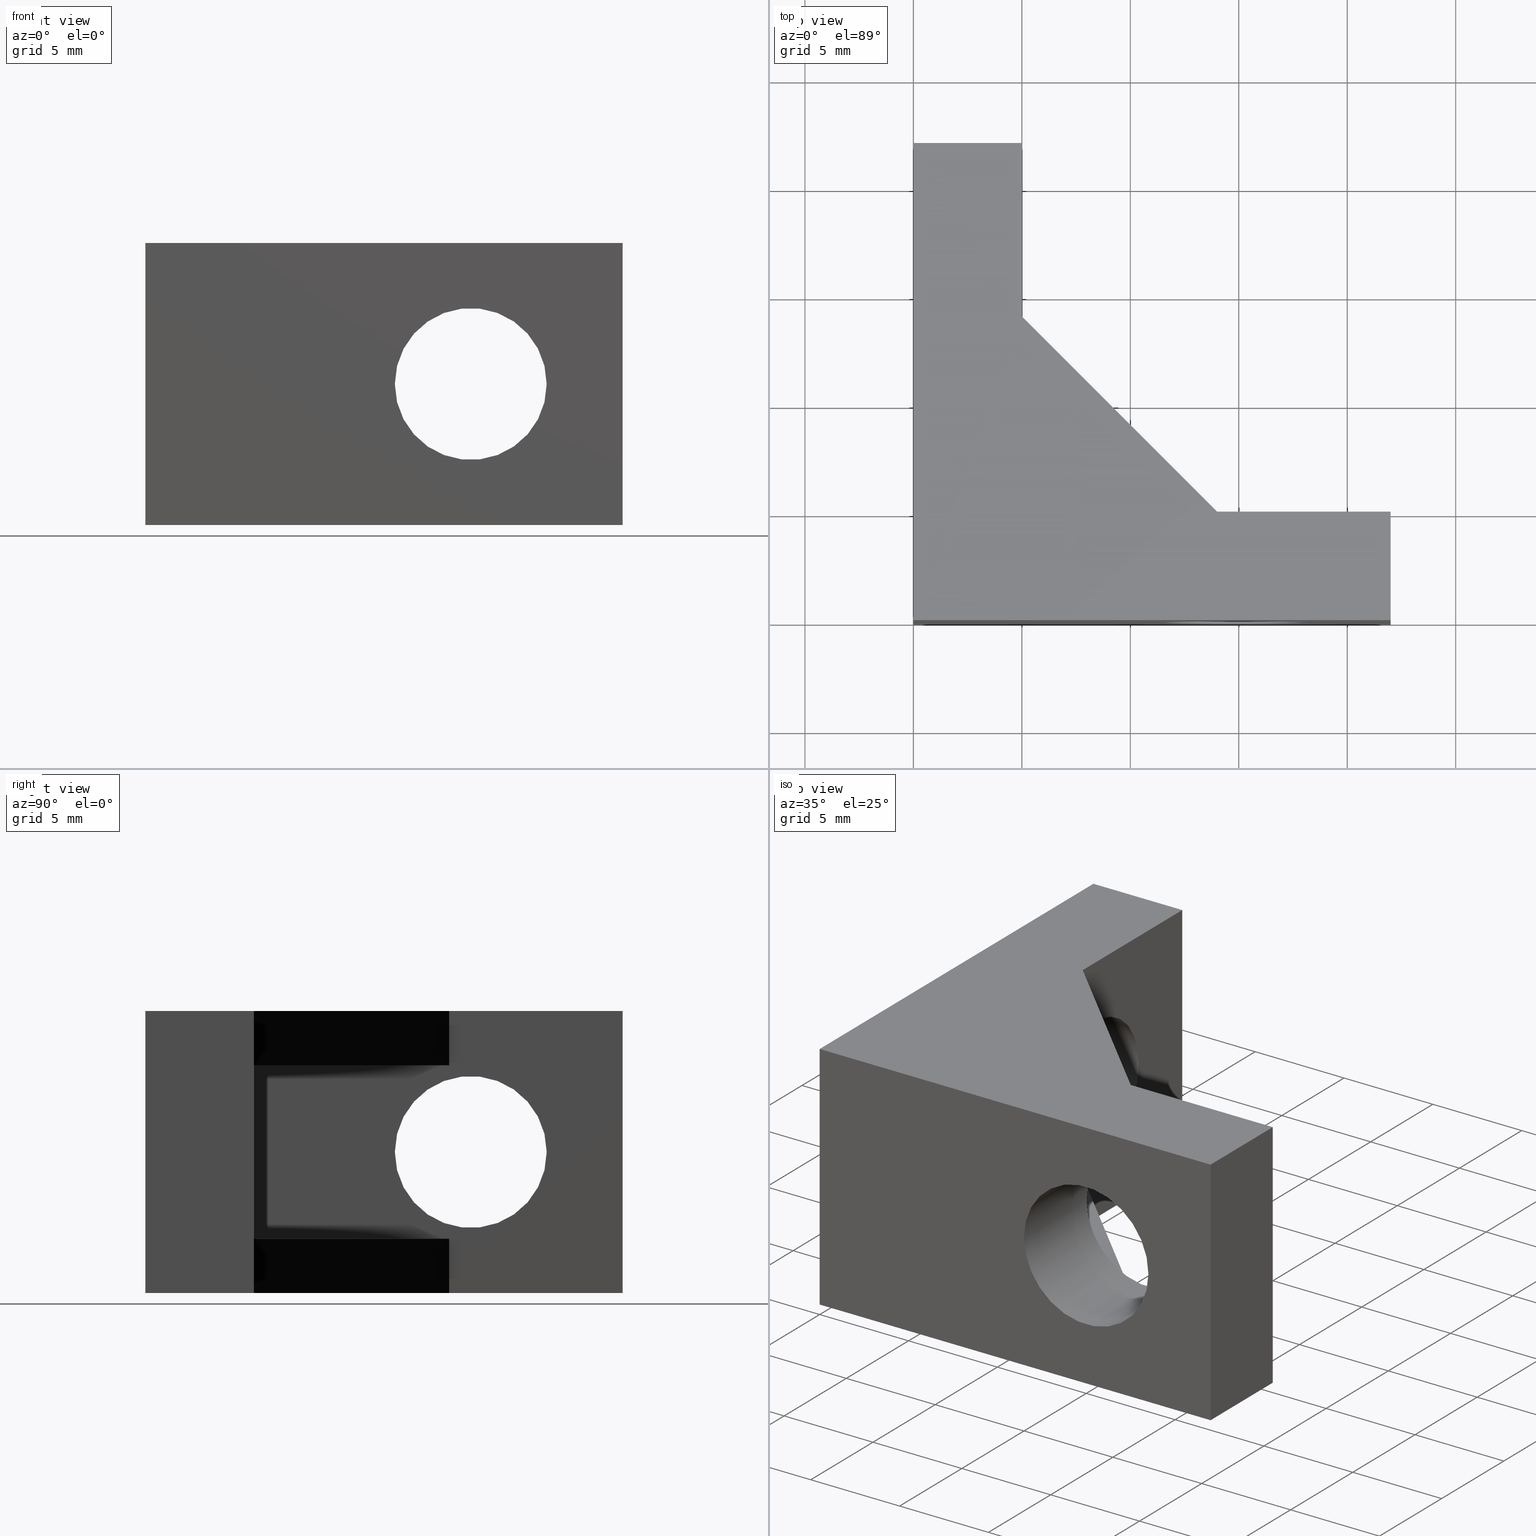
[diagram: canonical four-view strip — front | top / right | iso, engineering-drawing reading convention]
A machine part, canonical four-view strip (front | top / right | iso — engineering-drawing reading convention). The complete STEP part file that produces these views, byte-faithful:
ISO-10303-21;
HEADER;
/* Generated by software containing ST-Developer
 * from STEP Tools, Inc. (www.steptools.com) 
 */

FILE_DESCRIPTION(
/* description */ ('ANGOLARE DI FISSAGGIO 13X22'),
/* implementation_level */ '2;1');

FILE_NAME(
/* name */ 'C:\\Users\\tecnico7\\Desktop\\CANYY0000006.stp',
/* time_stamp */ '2022-07-06T16:24:00+02:00',
/* author */ ('tecnico7'),
/* organization */ (''),
/* preprocessor_version */ 'ST-DEVELOPER v18.1',
/* originating_system */ 'Autodesk Inventor 2022',
/* authorisation */ '');

FILE_SCHEMA (('AUTOMOTIVE_DESIGN { 1 0 10303 214 3 1 1 }'));
ENDSEC;

DATA;
#10=MECHANICAL_DESIGN_GEOMETRIC_PRESENTATION_REPRESENTATION('',(#13),#468);
#11=SHAPE_REPRESENTATION_RELATIONSHIP('SRR','None',#475,#12);
#12=ADVANCED_BREP_SHAPE_REPRESENTATION('',(#14),#467);
#13=STYLED_ITEM('',(#484),#14);
#14=MANIFOLD_SOLID_BREP('Solido1',#279);
#15=FACE_BOUND('',#48,.T.);
#16=FACE_BOUND('',#51,.T.);
#17=FACE_BOUND('',#53,.T.);
#18=FACE_BOUND('',#56,.T.);
#19=PLANE('',#308);
#20=PLANE('',#309);
#21=PLANE('',#310);
#22=PLANE('',#311);
#23=PLANE('',#312);
#24=PLANE('',#313);
#25=PLANE('',#314);
#26=PLANE('',#315);
#27=PLANE('',#316);
#28=PLANE('',#317);
#29=PLANE('',#318);
#30=PLANE('',#319);
#31=FACE_OUTER_BOUND('',#45,.T.);
#32=FACE_OUTER_BOUND('',#46,.T.);
#33=FACE_OUTER_BOUND('',#47,.T.);
#34=FACE_OUTER_BOUND('',#49,.T.);
#35=FACE_OUTER_BOUND('',#50,.T.);
#36=FACE_OUTER_BOUND('',#52,.T.);
#37=FACE_OUTER_BOUND('',#54,.T.);
#38=FACE_OUTER_BOUND('',#55,.T.);
#39=FACE_OUTER_BOUND('',#57,.T.);
#40=FACE_OUTER_BOUND('',#58,.T.);
#41=FACE_OUTER_BOUND('',#59,.T.);
#42=FACE_OUTER_BOUND('',#60,.T.);
#43=FACE_OUTER_BOUND('',#61,.T.);
#44=FACE_OUTER_BOUND('',#62,.T.);
#45=EDGE_LOOP('',(#191,#192,#193,#194));
#46=EDGE_LOOP('',(#195,#196,#197,#198));
#47=EDGE_LOOP('',(#199,#200,#201,#202));
#48=EDGE_LOOP('',(#203));
#49=EDGE_LOOP('',(#204,#205,#206,#207));
#50=EDGE_LOOP('',(#208,#209,#210,#211,#212,#213,#214,#215));
#51=EDGE_LOOP('',(#216));
#52=EDGE_LOOP('',(#217,#218,#219,#220,#221,#222,#223,#224));
#53=EDGE_LOOP('',(#225));
#54=EDGE_LOOP('',(#226,#227,#228,#229));
#55=EDGE_LOOP('',(#230,#231,#232,#233));
#56=EDGE_LOOP('',(#234));
#57=EDGE_LOOP('',(#235,#236,#237,#238,#239,#240,#241));
#58=EDGE_LOOP('',(#242,#243,#244,#245,#246,#247,#248));
#59=EDGE_LOOP('',(#249,#250,#251));
#60=EDGE_LOOP('',(#252,#253,#254,#255));
#61=EDGE_LOOP('',(#256,#257,#258));
#62=EDGE_LOOP('',(#259,#260,#261,#262));
#63=LINE('',#395,#95);
#64=LINE('',#401,#96);
#65=LINE('',#406,#97);
#66=LINE('',#408,#98);
#67=LINE('',#410,#99);
#68=LINE('',#411,#100);
#69=LINE('',#414,#101);
#70=LINE('',#416,#102);
#71=LINE('',#417,#103);
#72=LINE('',#420,#104);
#73=LINE('',#422,#105);
#74=LINE('',#424,#106);
#75=LINE('',#426,#107);
#76=LINE('',#428,#108);
#77=LINE('',#430,#109);
#78=LINE('',#431,#110);
#79=LINE('',#434,#111);
#80=LINE('',#436,#112);
#81=LINE('',#438,#113);
#82=LINE('',#440,#114);
#83=LINE('',#442,#115);
#84=LINE('',#444,#116);
#85=LINE('',#445,#117);
#86=LINE('',#448,#118);
#87=LINE('',#450,#119);
#88=LINE('',#451,#120);
#89=LINE('',#453,#121);
#90=LINE('',#454,#122);
#91=LINE('',#456,#123);
#92=LINE('',#458,#124);
#93=LINE('',#460,#125);
#94=LINE('',#463,#126);
#95=VECTOR('',#326,3.5);
#96=VECTOR('',#333,3.5);
#97=VECTOR('',#338,1000.);
#98=VECTOR('',#339,1000.);
#99=VECTOR('',#340,1000.);
#100=VECTOR('',#341,1000.);
#101=VECTOR('',#344,1000.);
#102=VECTOR('',#345,1000.);
#103=VECTOR('',#346,1000.);
#104=VECTOR('',#349,1000.);
#105=VECTOR('',#350,1000.);
#106=VECTOR('',#351,1000.);
#107=VECTOR('',#352,1000.);
#108=VECTOR('',#353,1000.);
#109=VECTOR('',#354,1000.);
#110=VECTOR('',#355,1000.);
#111=VECTOR('',#358,1000.);
#112=VECTOR('',#359,1000.);
#113=VECTOR('',#360,1000.);
#114=VECTOR('',#361,1000.);
#115=VECTOR('',#362,1000.);
#116=VECTOR('',#363,1000.);
#117=VECTOR('',#364,1000.);
#118=VECTOR('',#367,1000.);
#119=VECTOR('',#368,1000.);
#120=VECTOR('',#369,1000.);
#121=VECTOR('',#372,1000.);
#122=VECTOR('',#373,1000.);
#123=VECTOR('',#376,1000.);
#124=VECTOR('',#379,1000.);
#125=VECTOR('',#382,1000.);
#126=VECTOR('',#387,1000.);
#127=CIRCLE('',#303,3.5);
#128=CIRCLE('',#304,3.5);
#129=CIRCLE('',#306,3.5);
#130=CIRCLE('',#307,3.5);
#131=VERTEX_POINT('',#392);
#132=VERTEX_POINT('',#394);
#133=VERTEX_POINT('',#398);
#134=VERTEX_POINT('',#400);
#135=VERTEX_POINT('',#404);
#136=VERTEX_POINT('',#405);
#137=VERTEX_POINT('',#407);
#138=VERTEX_POINT('',#409);
#139=VERTEX_POINT('',#413);
#140=VERTEX_POINT('',#415);
#141=VERTEX_POINT('',#419);
#142=VERTEX_POINT('',#421);
#143=VERTEX_POINT('',#423);
#144=VERTEX_POINT('',#425);
#145=VERTEX_POINT('',#427);
#146=VERTEX_POINT('',#429);
#147=VERTEX_POINT('',#433);
#148=VERTEX_POINT('',#435);
#149=VERTEX_POINT('',#437);
#150=VERTEX_POINT('',#439);
#151=VERTEX_POINT('',#441);
#152=VERTEX_POINT('',#443);
#153=VERTEX_POINT('',#447);
#154=VERTEX_POINT('',#449);
#155=EDGE_CURVE('',#131,#131,#127,.T.);
#156=EDGE_CURVE('',#131,#132,#63,.T.);
#157=EDGE_CURVE('',#132,#132,#128,.T.);
#158=EDGE_CURVE('',#133,#133,#129,.T.);
#159=EDGE_CURVE('',#133,#134,#64,.T.);
#160=EDGE_CURVE('',#134,#134,#130,.T.);
#161=EDGE_CURVE('',#135,#136,#65,.T.);
#162=EDGE_CURVE('',#137,#136,#66,.T.);
#163=EDGE_CURVE('',#138,#137,#67,.T.);
#164=EDGE_CURVE('',#138,#135,#68,.T.);
#165=EDGE_CURVE('',#136,#139,#69,.T.);
#166=EDGE_CURVE('',#140,#139,#70,.T.);
#167=EDGE_CURVE('',#137,#140,#71,.T.);
#168=EDGE_CURVE('',#139,#141,#72,.T.);
#169=EDGE_CURVE('',#141,#142,#73,.T.);
#170=EDGE_CURVE('',#143,#142,#74,.T.);
#171=EDGE_CURVE('',#144,#143,#75,.T.);
#172=EDGE_CURVE('',#145,#144,#76,.T.);
#173=EDGE_CURVE('',#145,#146,#77,.T.);
#174=EDGE_CURVE('',#140,#146,#78,.T.);
#175=EDGE_CURVE('',#147,#143,#79,.T.);
#176=EDGE_CURVE('',#147,#148,#80,.T.);
#177=EDGE_CURVE('',#148,#149,#81,.T.);
#178=EDGE_CURVE('',#150,#149,#82,.T.);
#179=EDGE_CURVE('',#151,#150,#83,.T.);
#180=EDGE_CURVE('',#151,#152,#84,.T.);
#181=EDGE_CURVE('',#144,#152,#85,.T.);
#182=EDGE_CURVE('',#149,#153,#86,.T.);
#183=EDGE_CURVE('',#154,#153,#87,.T.);
#184=EDGE_CURVE('',#150,#154,#88,.T.);
#185=EDGE_CURVE('',#153,#135,#89,.T.);
#186=EDGE_CURVE('',#154,#138,#90,.T.);
#187=EDGE_CURVE('',#151,#146,#91,.T.);
#188=EDGE_CURVE('',#148,#141,#92,.T.);
#189=EDGE_CURVE('',#152,#145,#93,.T.);
#190=EDGE_CURVE('',#147,#142,#94,.T.);
#191=ORIENTED_EDGE('',*,*,#155,.F.);
#192=ORIENTED_EDGE('',*,*,#156,.T.);
#193=ORIENTED_EDGE('',*,*,#157,.T.);
#194=ORIENTED_EDGE('',*,*,#156,.F.);
#195=ORIENTED_EDGE('',*,*,#158,.F.);
#196=ORIENTED_EDGE('',*,*,#159,.T.);
#197=ORIENTED_EDGE('',*,*,#160,.T.);
#198=ORIENTED_EDGE('',*,*,#159,.F.);
#199=ORIENTED_EDGE('',*,*,#161,.T.);
#200=ORIENTED_EDGE('',*,*,#162,.F.);
#201=ORIENTED_EDGE('',*,*,#163,.F.);
#202=ORIENTED_EDGE('',*,*,#164,.T.);
#203=ORIENTED_EDGE('',*,*,#155,.T.);
#204=ORIENTED_EDGE('',*,*,#165,.T.);
#205=ORIENTED_EDGE('',*,*,#166,.F.);
#206=ORIENTED_EDGE('',*,*,#167,.F.);
#207=ORIENTED_EDGE('',*,*,#162,.T.);
#208=ORIENTED_EDGE('',*,*,#168,.T.);
#209=ORIENTED_EDGE('',*,*,#169,.T.);
#210=ORIENTED_EDGE('',*,*,#170,.F.);
#211=ORIENTED_EDGE('',*,*,#171,.F.);
#212=ORIENTED_EDGE('',*,*,#172,.F.);
#213=ORIENTED_EDGE('',*,*,#173,.T.);
#214=ORIENTED_EDGE('',*,*,#174,.F.);
#215=ORIENTED_EDGE('',*,*,#166,.T.);
#216=ORIENTED_EDGE('',*,*,#157,.F.);
#217=ORIENTED_EDGE('',*,*,#175,.F.);
#218=ORIENTED_EDGE('',*,*,#176,.T.);
#219=ORIENTED_EDGE('',*,*,#177,.T.);
#220=ORIENTED_EDGE('',*,*,#178,.F.);
#221=ORIENTED_EDGE('',*,*,#179,.F.);
#222=ORIENTED_EDGE('',*,*,#180,.T.);
#223=ORIENTED_EDGE('',*,*,#181,.F.);
#224=ORIENTED_EDGE('',*,*,#171,.T.);
#225=ORIENTED_EDGE('',*,*,#160,.F.);
#226=ORIENTED_EDGE('',*,*,#182,.T.);
#227=ORIENTED_EDGE('',*,*,#183,.F.);
#228=ORIENTED_EDGE('',*,*,#184,.F.);
#229=ORIENTED_EDGE('',*,*,#178,.T.);
#230=ORIENTED_EDGE('',*,*,#185,.T.);
#231=ORIENTED_EDGE('',*,*,#164,.F.);
#232=ORIENTED_EDGE('',*,*,#186,.F.);
#233=ORIENTED_EDGE('',*,*,#183,.T.);
#234=ORIENTED_EDGE('',*,*,#158,.T.);
#235=ORIENTED_EDGE('',*,*,#174,.T.);
#236=ORIENTED_EDGE('',*,*,#187,.F.);
#237=ORIENTED_EDGE('',*,*,#179,.T.);
#238=ORIENTED_EDGE('',*,*,#184,.T.);
#239=ORIENTED_EDGE('',*,*,#186,.T.);
#240=ORIENTED_EDGE('',*,*,#163,.T.);
#241=ORIENTED_EDGE('',*,*,#167,.T.);
#242=ORIENTED_EDGE('',*,*,#177,.F.);
#243=ORIENTED_EDGE('',*,*,#188,.T.);
#244=ORIENTED_EDGE('',*,*,#168,.F.);
#245=ORIENTED_EDGE('',*,*,#165,.F.);
#246=ORIENTED_EDGE('',*,*,#161,.F.);
#247=ORIENTED_EDGE('',*,*,#185,.F.);
#248=ORIENTED_EDGE('',*,*,#182,.F.);
#249=ORIENTED_EDGE('',*,*,#189,.T.);
#250=ORIENTED_EDGE('',*,*,#172,.T.);
#251=ORIENTED_EDGE('',*,*,#181,.T.);
#252=ORIENTED_EDGE('',*,*,#173,.F.);
#253=ORIENTED_EDGE('',*,*,#189,.F.);
#254=ORIENTED_EDGE('',*,*,#180,.F.);
#255=ORIENTED_EDGE('',*,*,#187,.T.);
#256=ORIENTED_EDGE('',*,*,#175,.T.);
#257=ORIENTED_EDGE('',*,*,#170,.T.);
#258=ORIENTED_EDGE('',*,*,#190,.F.);
#259=ORIENTED_EDGE('',*,*,#169,.F.);
#260=ORIENTED_EDGE('',*,*,#188,.F.);
#261=ORIENTED_EDGE('',*,*,#176,.F.);
#262=ORIENTED_EDGE('',*,*,#190,.T.);
#263=CYLINDRICAL_SURFACE('',#302,3.5);
#264=CYLINDRICAL_SURFACE('',#305,3.5);
#265=ADVANCED_FACE('',(#31),#263,.F.);
#266=ADVANCED_FACE('',(#32),#264,.F.);
#267=ADVANCED_FACE('',(#33,#15),#19,.F.);
#268=ADVANCED_FACE('',(#34),#20,.F.);
#269=ADVANCED_FACE('',(#35,#16),#21,.F.);
#270=ADVANCED_FACE('',(#36,#17),#22,.F.);
#271=ADVANCED_FACE('',(#37),#23,.F.);
#272=ADVANCED_FACE('',(#38,#18),#24,.F.);
#273=ADVANCED_FACE('',(#39),#25,.F.);
#274=ADVANCED_FACE('',(#40),#26,.T.);
#275=ADVANCED_FACE('',(#41),#27,.F.);
#276=ADVANCED_FACE('',(#42),#28,.F.);
#277=ADVANCED_FACE('',(#43),#29,.F.);
#278=ADVANCED_FACE('',(#44),#30,.T.);
#279=CLOSED_SHELL('',(#265,#266,#267,#268,#269,#270,#271,#272,#273,#274,
#275,#276,#277,#278));
#280=DERIVED_UNIT_ELEMENT(#283,1.);
#281=DERIVED_UNIT_ELEMENT(#470,-3.);
#282=DIMENSIONAL_EXPONENTS(1.,0.,0.,0.,0.,0.,0.);
#283=(
CONVERSION_BASED_UNIT('gram',#285)
MASS_UNIT()
NAMED_UNIT(#282)
);
#284=(
MASS_UNIT()
NAMED_UNIT(*)
SI_UNIT(.KILO.,.GRAM.)
);
#285=MASS_MEASURE_WITH_UNIT(MASS_MEASURE(0.001),#284);
#286=DERIVED_UNIT((#280,#281));
#287=MEASURE_REPRESENTATION_ITEM('density measure',
POSITIVE_RATIO_MEASURE(2.7),#286);
#288=PROPERTY_DEFINITION_REPRESENTATION(#293,#290);
#289=PROPERTY_DEFINITION_REPRESENTATION(#294,#291);
#290=REPRESENTATION('material name',(#292),#467);
#291=REPRESENTATION('density',(#287),#467);
#292=DESCRIPTIVE_REPRESENTATION_ITEM('Alluminio 6060','Alluminio 6060');
#293=PROPERTY_DEFINITION('material property','material name',#477);
#294=PROPERTY_DEFINITION('material property','density of part',#477);
#295=DATE_TIME_ROLE('creation_date');
#296=APPLIED_DATE_AND_TIME_ASSIGNMENT(#297,#295,(#477));
#297=DATE_AND_TIME(#298,#299);
#298=CALENDAR_DATE(2015,8,10);
#299=LOCAL_TIME(0,0,0.,#300);
#300=COORDINATED_UNIVERSAL_TIME_OFFSET(0,0,.BEHIND.);
#301=AXIS2_PLACEMENT_3D('placement',#390,#320,#321);
#302=AXIS2_PLACEMENT_3D('',#391,#322,#323);
#303=AXIS2_PLACEMENT_3D('',#393,#324,#325);
#304=AXIS2_PLACEMENT_3D('',#396,#327,#328);
#305=AXIS2_PLACEMENT_3D('',#397,#329,#330);
#306=AXIS2_PLACEMENT_3D('',#399,#331,#332);
#307=AXIS2_PLACEMENT_3D('',#402,#334,#335);
#308=AXIS2_PLACEMENT_3D('',#403,#336,#337);
#309=AXIS2_PLACEMENT_3D('',#412,#342,#343);
#310=AXIS2_PLACEMENT_3D('',#418,#347,#348);
#311=AXIS2_PLACEMENT_3D('',#432,#356,#357);
#312=AXIS2_PLACEMENT_3D('',#446,#365,#366);
#313=AXIS2_PLACEMENT_3D('',#452,#370,#371);
#314=AXIS2_PLACEMENT_3D('',#455,#374,#375);
#315=AXIS2_PLACEMENT_3D('',#457,#377,#378);
#316=AXIS2_PLACEMENT_3D('',#459,#380,#381);
#317=AXIS2_PLACEMENT_3D('',#461,#383,#384);
#318=AXIS2_PLACEMENT_3D('',#462,#385,#386);
#319=AXIS2_PLACEMENT_3D('',#464,#388,#389);
#320=DIRECTION('axis',(0.,0.,1.));
#321=DIRECTION('refdir',(1.,0.,0.));
#322=DIRECTION('center_axis',(-5.10212787052002E-17,1.,0.));
#323=DIRECTION('ref_axis',(-1.,-5.10212787052002E-17,0.));
#324=DIRECTION('center_axis',(-5.10212787052002E-17,1.,0.));
#325=DIRECTION('ref_axis',(-1.,-5.10212787052002E-17,0.));
#326=DIRECTION('',(-5.10212787052002E-17,1.,0.));
#327=DIRECTION('center_axis',(-5.10212787052002E-17,1.,0.));
#328=DIRECTION('ref_axis',(-1.,-5.10212787052002E-17,0.));
#329=DIRECTION('center_axis',(1.,1.53063836115601E-16,0.));
#330=DIRECTION('ref_axis',(-1.53063836115601E-16,1.,0.));
#331=DIRECTION('center_axis',(1.,1.53063836115601E-16,0.));
#332=DIRECTION('ref_axis',(-1.53063836115601E-16,1.,0.));
#333=DIRECTION('',(1.,1.53063836115601E-16,0.));
#334=DIRECTION('center_axis',(1.,1.53063836115601E-16,0.));
#335=DIRECTION('ref_axis',(-1.53063836115601E-16,1.,0.));
#336=DIRECTION('center_axis',(9.11086486901662E-17,1.,0.));
#337=DIRECTION('ref_axis',(-1.,9.11086486901662E-17,0.));
#338=DIRECTION('',(1.,-9.11086486901661E-17,0.));
#339=DIRECTION('',(0.,0.,-1.));
#340=DIRECTION('',(1.,-9.11086486901661E-17,0.));
#341=DIRECTION('',(0.,0.,-1.));
#342=DIRECTION('center_axis',(-1.,0.,0.));
#343=DIRECTION('ref_axis',(0.,0.,1.));
#344=DIRECTION('',(0.,1.,0.));
#345=DIRECTION('',(0.,0.,-1.));
#346=DIRECTION('',(0.,1.,0.));
#347=DIRECTION('center_axis',(5.10212787052002E-17,-1.,0.));
#348=DIRECTION('ref_axis',(1.,5.10212787052002E-17,0.));
#349=DIRECTION('',(-1.,-5.10212787052002E-17,0.));
#350=DIRECTION('',(0.,0.,1.));
#351=DIRECTION('',(1.,5.10212787052002E-17,0.));
#352=DIRECTION('',(0.,0.,-1.));
#353=DIRECTION('',(-1.,-5.10212787052002E-17,0.));
#354=DIRECTION('',(0.,0.,1.));
#355=DIRECTION('',(-1.,-5.10212787052002E-17,0.));
#356=DIRECTION('center_axis',(-1.,-1.53063836115601E-16,0.));
#357=DIRECTION('ref_axis',(1.53063836115601E-16,-1.,0.));
#358=DIRECTION('',(1.53063836115601E-16,-1.,0.));
#359=DIRECTION('',(0.,0.,-1.));
#360=DIRECTION('',(-1.53063836115601E-16,1.,0.));
#361=DIRECTION('',(0.,0.,-1.));
#362=DIRECTION('',(-1.53063836115601E-16,1.,0.));
#363=DIRECTION('',(0.,0.,-1.));
#364=DIRECTION('',(-1.53063836115601E-16,1.,0.));
#365=DIRECTION('center_axis',(0.,-1.,0.));
#366=DIRECTION('ref_axis',(0.,0.,-1.));
#367=DIRECTION('',(-1.,0.,0.));
#368=DIRECTION('',(0.,0.,-1.));
#369=DIRECTION('',(-1.,0.,0.));
#370=DIRECTION('center_axis',(1.,0.,0.));
#371=DIRECTION('ref_axis',(0.,0.,-1.));
#372=DIRECTION('',(0.,-1.,0.));
#373=DIRECTION('',(0.,-1.,0.));
#374=DIRECTION('center_axis',(0.,0.,-1.));
#375=DIRECTION('ref_axis',(-1.,0.,0.));
#376=DIRECTION('',(0.707106781186547,-0.707106781186548,0.));
#377=DIRECTION('center_axis',(0.,0.,-1.));
#378=DIRECTION('ref_axis',(-1.,0.,0.));
#379=DIRECTION('',(0.707106781186547,-0.707106781186548,0.));
#380=DIRECTION('center_axis',(0.,0.,1.));
#381=DIRECTION('ref_axis',(1.,0.,0.));
#382=DIRECTION('',(0.707106781186547,-0.707106781186548,0.));
#383=DIRECTION('center_axis',(-0.707106781186548,-0.707106781186547,0.));
#384=DIRECTION('ref_axis',(0.707106781186547,-0.707106781186548,0.));
#385=DIRECTION('center_axis',(0.,0.,-1.));
#386=DIRECTION('ref_axis',(-1.,0.,0.));
#387=DIRECTION('',(0.707106781186547,-0.707106781186548,0.));
#388=DIRECTION('center_axis',(0.707106781186548,0.707106781186547,0.));
#389=DIRECTION('ref_axis',(0.707106781186547,-0.707106781186548,0.));
#390=CARTESIAN_POINT('',(0.,0.,0.));
#391=CARTESIAN_POINT('Origin',(15.,-5.20417042793042E-15,0.));
#392=CARTESIAN_POINT('',(18.5,-5.02559595246222E-15,-4.28626379701574E-16));
#393=CARTESIAN_POINT('Origin',(15.,-5.20417042793042E-15,0.));
#394=CARTESIAN_POINT('',(18.5,5.,-4.28626379701574E-16));
#395=CARTESIAN_POINT('',(18.5,-5.02559595246222E-15,-4.28626379701574E-16));
#396=CARTESIAN_POINT('Origin',(15.,5.,0.));
#397=CARTESIAN_POINT('Origin',(-2.60208521396521E-15,15.,0.));
#398=CARTESIAN_POINT('',(-2.06636178756061E-15,11.5,-4.28626379701574E-16));
#399=CARTESIAN_POINT('Origin',(-2.60208521396521E-15,15.,0.));
#400=CARTESIAN_POINT('',(5.,11.5,-4.28626379701574E-16));
#401=CARTESIAN_POINT('',(-2.06636178756061E-15,11.5,-4.28626379701574E-16));
#402=CARTESIAN_POINT('Origin',(5.,15.,0.));
#403=CARTESIAN_POINT('Origin',(22.,-2.00439027118366E-15,6.5));
#404=CARTESIAN_POINT('',(0.,0.,-6.5));
#405=CARTESIAN_POINT('',(22.,-2.00439027118366E-15,-6.5));
#406=CARTESIAN_POINT('',(22.,-2.00439027118366E-15,-6.5));
#407=CARTESIAN_POINT('',(22.,-2.00439027118366E-15,6.5));
#408=CARTESIAN_POINT('',(22.,-2.00439027118366E-15,6.5));
#409=CARTESIAN_POINT('',(0.,0.,6.5));
#410=CARTESIAN_POINT('',(22.,-2.00439027118366E-15,6.5));
#411=CARTESIAN_POINT('',(0.,0.,6.5));
#412=CARTESIAN_POINT('Origin',(22.,5.,6.5));
#413=CARTESIAN_POINT('',(22.,5.,-6.5));
#414=CARTESIAN_POINT('',(22.,5.,-6.5));
#415=CARTESIAN_POINT('',(22.,5.,6.5));
#416=CARTESIAN_POINT('',(22.,5.,6.5));
#417=CARTESIAN_POINT('',(22.,5.,6.5));
#418=CARTESIAN_POINT('Origin',(5.,5.,6.5));
#419=CARTESIAN_POINT('',(14.,5.,-6.5));
#420=CARTESIAN_POINT('',(5.,5.,-6.5));
#421=CARTESIAN_POINT('',(14.,5.,-4.));
#422=CARTESIAN_POINT('',(14.,5.,6.5));
#423=CARTESIAN_POINT('',(5.,5.,-4.));
#424=CARTESIAN_POINT('',(5.,5.,-4.));
#425=CARTESIAN_POINT('',(5.,5.,4.));
#426=CARTESIAN_POINT('',(5.,5.,6.5));
#427=CARTESIAN_POINT('',(14.,5.,4.));
#428=CARTESIAN_POINT('',(5.,5.,4.));
#429=CARTESIAN_POINT('',(14.,5.,6.5));
#430=CARTESIAN_POINT('',(14.,5.,6.5));
#431=CARTESIAN_POINT('',(5.,5.,6.5));
#432=CARTESIAN_POINT('Origin',(5.,22.,6.5));
#433=CARTESIAN_POINT('',(5.,14.,-4.));
#434=CARTESIAN_POINT('',(5.,22.,-4.));
#435=CARTESIAN_POINT('',(5.,14.,-6.5));
#436=CARTESIAN_POINT('',(5.,14.,6.5));
#437=CARTESIAN_POINT('',(5.,22.,-6.5));
#438=CARTESIAN_POINT('',(5.,22.,-6.5));
#439=CARTESIAN_POINT('',(5.,22.,6.5));
#440=CARTESIAN_POINT('',(5.,22.,6.5));
#441=CARTESIAN_POINT('',(5.,14.,6.5));
#442=CARTESIAN_POINT('',(5.,22.,6.5));
#443=CARTESIAN_POINT('',(5.,14.,4.));
#444=CARTESIAN_POINT('',(5.,14.,6.5));
#445=CARTESIAN_POINT('',(5.,22.,4.));
#446=CARTESIAN_POINT('Origin',(0.,22.,6.5));
#447=CARTESIAN_POINT('',(0.,22.,-6.5));
#448=CARTESIAN_POINT('',(0.,22.,-6.5));
#449=CARTESIAN_POINT('',(0.,22.,6.5));
#450=CARTESIAN_POINT('',(0.,22.,6.5));
#451=CARTESIAN_POINT('',(0.,22.,6.5));
#452=CARTESIAN_POINT('Origin',(0.,0.,6.5));
#453=CARTESIAN_POINT('',(0.,0.,-6.5));
#454=CARTESIAN_POINT('',(0.,0.,6.5));
#455=CARTESIAN_POINT('Origin',(0.,0.,6.5));
#456=CARTESIAN_POINT('',(5.,14.,6.5));
#457=CARTESIAN_POINT('Origin',(0.,0.,-6.5));
#458=CARTESIAN_POINT('',(5.,14.,-6.5));
#459=CARTESIAN_POINT('Origin',(11.,11.,4.));
#460=CARTESIAN_POINT('',(5.,14.,4.));
#461=CARTESIAN_POINT('Origin',(5.,14.,6.5));
#462=CARTESIAN_POINT('Origin',(11.,11.,-4.));
#463=CARTESIAN_POINT('',(5.,14.,-4.));
#464=CARTESIAN_POINT('Origin',(5.,14.,-6.5));
#465=UNCERTAINTY_MEASURE_WITH_UNIT(LENGTH_MEASURE(0.01),#469,
'DISTANCE_ACCURACY_VALUE',
'Maximum model space distance between geometric entities at asserted c
onnectivities');
#466=UNCERTAINTY_MEASURE_WITH_UNIT(LENGTH_MEASURE(0.01),#469,
'DISTANCE_ACCURACY_VALUE',
'Maximum model space distance between geometric entities at asserted c
onnectivities');
#467=(
GEOMETRIC_REPRESENTATION_CONTEXT(3)
GLOBAL_UNCERTAINTY_ASSIGNED_CONTEXT((#465))
GLOBAL_UNIT_ASSIGNED_CONTEXT((#469,#471,#472))
REPRESENTATION_CONTEXT('','3D')
);
#468=(
GEOMETRIC_REPRESENTATION_CONTEXT(3)
GLOBAL_UNCERTAINTY_ASSIGNED_CONTEXT((#466))
GLOBAL_UNIT_ASSIGNED_CONTEXT((#469,#471,#472))
REPRESENTATION_CONTEXT('','3D')
);
#469=(
LENGTH_UNIT()
NAMED_UNIT(*)
SI_UNIT(.MILLI.,.METRE.)
);
#470=(
LENGTH_UNIT()
NAMED_UNIT(*)
SI_UNIT(.CENTI.,.METRE.)
);
#471=(
NAMED_UNIT(*)
PLANE_ANGLE_UNIT()
SI_UNIT($,.RADIAN.)
);
#472=(
NAMED_UNIT(*)
SI_UNIT($,.STERADIAN.)
SOLID_ANGLE_UNIT()
);
#473=SHAPE_DEFINITION_REPRESENTATION(#474,#475);
#474=PRODUCT_DEFINITION_SHAPE('',$,#477);
#475=SHAPE_REPRESENTATION('',(#301),#467);
#476=PRODUCT_DEFINITION_CONTEXT('part definition',#481,'design');
#477=PRODUCT_DEFINITION('CANYY0000006','CANYY0000006',#478,#476);
#478=PRODUCT_DEFINITION_FORMATION('A',$,#483);
#479=PRODUCT_RELATED_PRODUCT_CATEGORY('CANYY0000006','CANYY0000006',(#483));
#480=APPLICATION_PROTOCOL_DEFINITION('international standard',
'automotive_design',2009,#481);
#481=APPLICATION_CONTEXT(
'Core Data for Automotive Mechanical Design Process');
#482=PRODUCT_CONTEXT('part definition',#481,'mechanical');
#483=PRODUCT('CANYY0000006','CANYY0000006',
'ANGOLARE DI FISSAGGIO 13X22',(#482));
#484=PRESENTATION_STYLE_ASSIGNMENT((#485));
#485=SURFACE_STYLE_USAGE(.BOTH.,#488);
#486=SURFACE_STYLE_RENDERING_WITH_PROPERTIES($,#492,(#487));
#487=SURFACE_STYLE_TRANSPARENT(0.);
#488=SURFACE_SIDE_STYLE('',(#489,#486));
#489=SURFACE_STYLE_FILL_AREA(#490);
#490=FILL_AREA_STYLE('',(#491));
#491=FILL_AREA_STYLE_COLOUR('',#492);
#492=COLOUR_RGB('',0.698039215686274,0.698039215686274,0.698039215686274);
ENDSEC;
END-ISO-10303-21;
